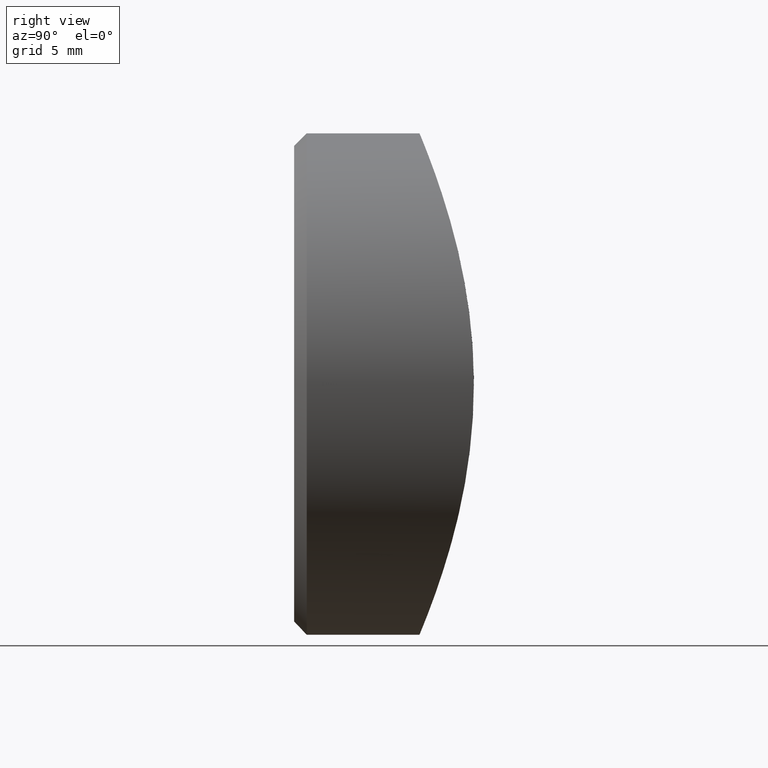
[diagram: clean part render]
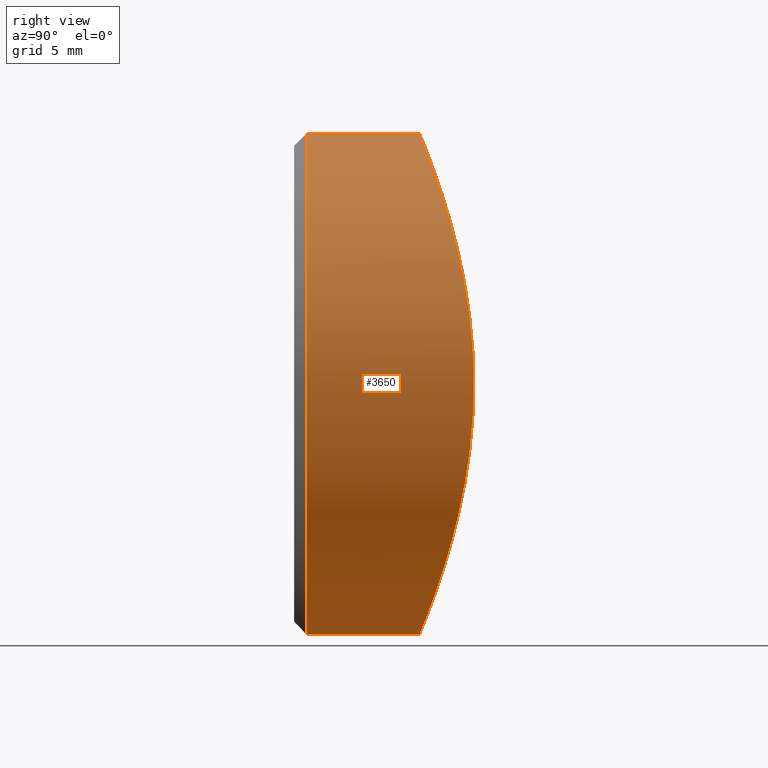
[diagram: same view with one face highlighted and labeled with its STEP entity id]
A machine part, right view. The second image highlights one B-rep face of the part: STEP entity #3650.
In plain terms, the highlighted cylindrical surface (bore or boss wall) has radius 10 mm, axis along (-0, -1, -0).
Its self-contained STEP definition (entity closure, byte-faithful):
#30 = CARTESIAN_POINT ( 'NONE',  ( -4.146300928546652109, 5.356622732125043029, 9.105812260108409717 ) ) ;
#307 = CARTESIAN_POINT ( 'NONE',  ( 0.6685898409940205234, 4.999999999999999112, -9.999999999999998224 ) ) ;
#319 = CYLINDRICAL_SURFACE ( 'NONE', #10499, 10.00000000000000000 ) ;
#478 = CARTESIAN_POINT ( 'NONE',  ( 4.460007492892792413, 5.407523304475200021, -8.974233905887116336 ) ) ;
#809 = CARTESIAN_POINT ( 'NONE',  ( -5.021732724417073079, 5.526048433272830351, 8.653857858785292123 ) ) ;
#851 = CARTESIAN_POINT ( 'NONE',  ( -9.866508024907622243, 7.107322681650651397, 1.661423778299080167 ) ) ;
#889 = CARTESIAN_POINT ( 'NONE',  ( -9.101057228647439601, 6.780113460454338714, 4.156614077757695647 ) ) ;
#930 = CARTESIAN_POINT ( 'NONE',  ( 0.3416281980981458744, 5.000171609606264056, 9.999585562541216888 ) ) ;
#973 = CARTESIAN_POINT ( 'NONE',  ( 0.6704349661022818152, 5.007071276361815926, 9.982955919743956130 ) ) ;
#1432 = CARTESIAN_POINT ( 'NONE',  ( 8.669091047136701533, 6.606278779777397858, -5.027249936795466390 ) ) ;
#1481 = CARTESIAN_POINT ( 'NONE',  ( 7.928773851458211119, 6.337634553492463851, -6.102380985635017296 ) ) ;
#1806 = CARTESIAN_POINT ( 'NONE',  ( -9.999715922551049019, 7.167548326830911698, 0.3382213582648907479 ) ) ;
#1835 = CIRCLE ( 'NONE', #11656, 10.00000000000000000 ) ;
#1845 = CARTESIAN_POINT ( 'NONE',  ( -6.604858916594664286, 5.919291658819459734, -7.515395329697081905 ) ) ;
#1897 = CARTESIAN_POINT ( 'NONE',  ( 7.949063932709880653, 6.342498770988322931, 6.101778635813145613 ) ) ;
#1945 = CARTESIAN_POINT ( 'NONE',  ( -4.445301050608903459, 5.410830137681569951, 8.963612774155105711 ) ) ;
#1989 = CARTESIAN_POINT ( 'NONE',  ( -1.638667573074397588, 5.053464111015505189, 9.870362379758919502 ) ) ;
#2017 = CARTESIAN_POINT ( 'NONE',  ( 0.000000000000000000, 0.5000000000000022204, 0.000000000000000000 ) ) ;
#2235 = CARTESIAN_POINT ( 'NONE',  ( 1.324602746686508237, 5.027693995643763181, -9.933634919405131214 ) ) ;
#2449 = CARTESIAN_POINT ( 'NONE',  ( 9.738179770275294800, 7.050329620124846208, -2.297105005416271606 ) ) ;
#2485 = B_SPLINE_CURVE_WITH_KNOTS ( 'NONE', 3,
 ( #11103, #307, #2235, #7215, #8196, #9181, #3315, #478, #5399, #12263, #6385, #7392, #3448, #10282, #4434, #1481, #11269, #1432, #8369, #2487, #9353, #3495, #2449, #8327, #9312, #3985, #10788, #5859, #6848, #4795, #12704, #7886, #11679, #1897, #6889, #5949, #11640, #11764, #5906, #12747, #4915, #6804, #3853, #8810, #8854, #973, #930, #7843, #12621, #9720, #1989, #10662, #2992, #30, #1945, #809, #9845, #10835, #4966, #5817, #10700, #11806, #4834, #12664, #8679, #2946, #889, #7723, #4874, #851, #5782, #6758, #1806, #11724, #2819, #8720, #9802, #3941, #9680, #3813, #2906, #7804, #8763, #7765, #1845, #2859, #9765, #3895, #8013, #8061, #8835, #11924, #4931, #2878, #10675, #4891 ),
 .UNSPECIFIED., .T., .F.,
 ( 4, 2, 2, 2, 2, 2, 2, 2, 2, 2, 2, 2, 2, 2, 2, 2, 2, 2, 2, 2, 2, 2, 2, 2, 2, 2, 2, 2, 2, 2, 2, 2, 2, 2, 2, 2, 2, 2, 2, 2, 2, 2, 2, 2, 2, 2, 2, 4 ),
 ( 0.000000000000000000, 0.001975776398232683643, 0.002963664597349025247, 0.003951552796465367286, 0.005927329194698052230, 0.006915217393814395569, 0.007903105592930736306, 0.008890993792047078778, 0.009878881991163421250, 0.01185465838939610619, 0.01284254658851244867, 0.01383043478762879114, 0.01580621118586147608, 0.01679409938497781682, 0.01778198758409416103, 0.01975776398232684597, 0.02173354038055952744, 0.02370931677879220892, 0.02568509317702489386, 0.02667298137614123460, 0.02766086957525757534, 0.02963664597349026375, 0.03062453417260660796, 0.03161242237172295216, 0.03260031057083929290, 0.03358819876995563364, 0.03556397516818832205, 0.03655186336730466279, 0.03753975156642100353, 0.03852763976553734426, 0.03951552796465369194, 0.04149130436288638035, 0.04247919256200272109, 0.04346708076111906183, 0.04544285715935175024, 0.04643074535846809098, 0.04741863355758442478, 0.04939440995581710625, 0.05137018635404979466, 0.05235807455316613540, 0.05334596275228247614, 0.05532173915051516455, 0.05630962734963150529, 0.05729751554874784603, 0.05927329194698052750, 0.06124906834521321591, 0.06223695654432955665, 0.06322484474344589045 ),
 .UNSPECIFIED. ) ;
#2487 = CARTESIAN_POINT ( 'NONE',  ( 9.351536007299278808, 6.883665212429011859, -3.557295207500231538 ) ) ;
#2819 = CARTESIAN_POINT ( 'NONE',  ( -9.936535572740650579, 7.138454496983015041, -1.307021620625269387 ) ) ;
#2859 = CARTESIAN_POINT ( 'NONE',  ( -6.103659208227282917, 5.782601436810779205, -7.927841606614947523 ) ) ;
#2878 = CARTESIAN_POINT ( 'NONE',  ( -0.6697883250221918772, 5.007030117249470891, -9.983056024903458336 ) ) ;
#2906 = CARTESIAN_POINT ( 'NONE',  ( -8.487067353210800746, 6.539622052336384606, -5.298577295798096110 ) ) ;
#2946 = CARTESIAN_POINT ( 'NONE',  ( -8.959076759627668807, 6.722668367561567493, 4.454432655922551554 ) ) ;
#2971 = FACE_OUTER_BOUND ( 'NONE', #3767, .T. ) ;
#2992 = CARTESIAN_POINT ( 'NONE',  ( -3.237694655618298611, 5.210152754811434583, 9.484083853626065874 ) ) ;
#3315 = CARTESIAN_POINT ( 'NONE',  ( 3.553999639533505395, 5.260982059097840668, -9.352872383431424907 ) ) ;
#3448 = CARTESIAN_POINT ( 'NONE',  ( 6.846066557773900385, 5.989460163542624116, -7.296244496542177771 ) ) ;
#3495 = CARTESIAN_POINT ( 'NONE',  ( 9.656114240653415948, 7.014213659418908620, -2.620665417038268608 ) ) ;
#3650 = ADVANCED_FACE ( 'NONE', ( #2971, #11406 ), #319, .T. ) ;
#3767 = EDGE_LOOP ( 'NONE', ( #9930 ) ) ;
#3813 = CARTESIAN_POINT ( 'NONE',  ( -8.656156134312556816, 6.604020597301828666, -5.017812244309582503 ) ) ;
#3853 = CARTESIAN_POINT ( 'NONE',  ( 2.634216507723645240, 5.135182073160032168, 9.669720002957024718 ) ) ;
#3895 = CARTESIAN_POINT ( 'NONE',  ( -5.039323530608731616, 5.525185307454418826, -8.661585811921362676 ) ) ;
#3941 = CARTESIAN_POINT ( 'NONE',  ( -9.106328756718527373, 6.782261989542066161, -4.145029980940003078 ) ) ;
#3985 = CARTESIAN_POINT ( 'NONE',  ( 10.00040900617423389, 7.167863617949264743, 0.3176673030703833778 ) ) ;
#4434 = CARTESIAN_POINT ( 'NONE',  ( 7.518077824388079478, 6.199009217922143655, -6.601743277941936938 ) ) ;
#4795 = CARTESIAN_POINT ( 'NONE',  ( 9.676296640429495000, 7.022828101597138328, 2.607988876370294307 ) ) ;
#4834 = CARTESIAN_POINT ( 'NONE',  ( -7.940332307611762452, 6.339456224636409232, 6.113001297087814478 ) ) ;
#4874 = CARTESIAN_POINT ( 'NONE',  ( -9.670626599334241291, 7.020338975890162203, 2.629110017269268074 ) ) ;
#4891 = CARTESIAN_POINT ( 'NONE',  ( -4.878909776184769953E-16, 4.999999999999999112, -10.00000000000000355 ) ) ;
#4915 = CARTESIAN_POINT ( 'NONE',  ( 4.159958603322281512, 5.359041056497870770, 9.099485771936040024 ) ) ;
#4931 = CARTESIAN_POINT ( 'NONE',  ( -1.329861478533836960, 5.034381003017012191, -9.916727910183336547 ) ) ;
#4966 = CARTESIAN_POINT ( 'NONE',  ( -6.097679573642314388, 5.781043938773438917, 7.932417372172134051 ) ) ;
#5399 = CARTESIAN_POINT ( 'NONE',  ( 5.031661090695161320, 5.523454555442991243, -8.666392432778005528 ) ) ;
#5782 = CARTESIAN_POINT ( 'NONE',  ( -9.916540444555115741, 7.129871426217686547, 1.331604818896089615 ) ) ;
#5788 = ORIENTED_EDGE ( 'NONE', *, *, #8320, .T. ) ;
#5817 = CARTESIAN_POINT ( 'NONE',  ( -6.598292517430042636, 5.917429340927871984, 7.521135379952923472 ) ) ;
#5859 = CARTESIAN_POINT ( 'NONE',  ( 9.918862008367089089, 7.130918131546907013, 1.314167683738197256 ) ) ;
#5906 = CARTESIAN_POINT ( 'NONE',  ( 5.029403097718449622, 5.527686029851387239, 8.649387923918968824 ) ) ;
#5949 = CARTESIAN_POINT ( 'NONE',  ( 6.618478030302936688, 5.919710930713273811, 7.524176811231900963 ) ) ;
#6230 = VERTEX_POINT ( 'NONE', #6524 ) ;
#6385 = CARTESIAN_POINT ( 'NONE',  ( 6.106028567364387705, 5.783220993693515055, -7.926017292744991671 ) ) ;
#6508 = EDGE_LOOP ( 'NONE', ( #5788 ) ) ;
#6524 = CARTESIAN_POINT ( 'NONE',  ( 0.000000000000000000, 0.5000000000000022204, 10.00000000000000000 ) ) ;
#6758 = CARTESIAN_POINT ( 'NONE',  ( -9.983170139167352630, 7.159998845683541724, 0.6687748160942247333 ) ) ;
#6785 = DIRECTION ( 'NONE',  ( 0.000000000000000000, 0.000000000000000000, 1.000000000000000000 ) ) ;
#6804 = CARTESIAN_POINT ( 'NONE',  ( 3.259355489656124760, 5.213228414778145137, 9.476296184276559842 ) ) ;
#6848 = CARTESIAN_POINT ( 'NONE',  ( 9.869928076924297855, 7.108856472948017036, 1.640914507083162110 ) ) ;
#6889 = CARTESIAN_POINT ( 'NONE',  ( 7.531726708176738505, 6.199538687129569681, 6.609885091105570432 ) ) ;
#7215 = CARTESIAN_POINT ( 'NONE',  ( 2.290844124180091423, 5.106727280800718916, -9.739607383557522979 ) ) ;
#7392 = CARTESIAN_POINT ( 'NONE',  ( 6.607120542733641244, 5.919935339547103936, -7.513407557436887707 ) ) ;
#7723 = CARTESIAN_POINT ( 'NONE',  ( -9.478821339272855084, 6.936294503095769670, 3.252488139911148046 ) ) ;
#7765 = CARTESIAN_POINT ( 'NONE',  ( -6.847596195432909205, 5.989894486223689363, -7.294918703482428768 ) ) ;
#7804 = CARTESIAN_POINT ( 'NONE',  ( -7.945190572558493258, 6.341131997789868358, -6.106953515105708163 ) ) ;
#7843 = CARTESIAN_POINT ( 'NONE',  ( -0.3169189386437679667, 4.999834710761670742, 10.00039917376538767 ) ) ;
#7886 = CARTESIAN_POINT ( 'NONE',  ( 8.977619374924001860, 6.729025034055982069, 4.453876922456356802 ) ) ;
#8013 = CARTESIAN_POINT ( 'NONE',  ( -4.467342248640351343, 5.408740856447741052, -8.971076279630640471 ) ) ;
#8061 = CARTESIAN_POINT ( 'NONE',  ( -3.247035887882689043, 5.211301404825853467, -9.481250672998816853 ) ) ;
#8074 = EDGE_CURVE ( 'NONE', #6230, #6230, #1835, .T. ) ;
#8196 = CARTESIAN_POINT ( 'NONE',  ( 2.609940751551603988, 5.139333498529842892, -9.659061652703451628 ) ) ;
#8320 = EDGE_CURVE ( 'NONE', #9006, #9006, #2485, .T. ) ;
#8327 = CARTESIAN_POINT ( 'NONE',  ( 9.933518279796031081, 7.137094259633087745, -1.326861394942243866 ) ) ;
#8369 = CARTESIAN_POINT ( 'NONE',  ( 8.975560322404280811, 6.728238713898575973, -4.456637348422945344 ) ) ;
#8679 = CARTESIAN_POINT ( 'NONE',  ( -8.648778744051140777, 6.601188794689787365, 5.030472433827578804 ) ) ;
#8720 = CARTESIAN_POINT ( 'NONE',  ( -9.675649913809747815, 7.022535767397092954, -2.612440133384051233 ) ) ;
#8763 = CARTESIAN_POINT ( 'NONE',  ( -7.535755018854213283, 6.200813945683178119, -6.605607199971379018 ) ) ;
#8810 = CARTESIAN_POINT ( 'NONE',  ( 1.656114244280814773, 5.054631051235181083, 9.867518988893710485 ) ) ;
#8835 = CARTESIAN_POINT ( 'NONE',  ( -2.620342116577891289, 5.133906165055870829, -9.672864136492147935 ) ) ;
#8854 = CARTESIAN_POINT ( 'NONE',  ( 1.327110505691012188, 5.034252694470970013, 9.917039358851411635 ) ) ;
#9006 = VERTEX_POINT ( 'NONE', #11483 ) ;
#9181 = CARTESIAN_POINT ( 'NONE',  ( 3.242105559943739390, 5.216495281517735449, -9.465622762159814130 ) ) ;
#9312 = CARTESIAN_POINT ( 'NONE',  ( 9.999158081187554004, 7.167294558976185392, -0.6732079116172177136 ) ) ;
#9353 = CARTESIAN_POINT ( 'NONE',  ( 9.462793877290028632, 6.930884104439970272, -3.250224837227786878 ) ) ;
#9606 = DIRECTION ( 'NONE',  ( -0.000000000000000000, -1.000000000000000000, -0.000000000000000000 ) ) ;
#9680 = CARTESIAN_POINT ( 'NONE',  ( -8.966223238888318292, 6.725525266376779499, -4.440081032048766474 ) ) ;
#9720 = CARTESIAN_POINT ( 'NONE',  ( -1.307093522203097713, 5.033133939378992672, 9.919758086071524872 ) ) ;
#9765 = CARTESIAN_POINT ( 'NONE',  ( -5.844219926075576943, 5.716186158000716944, -8.120933201394853640 ) ) ;
#9802 = CARTESIAN_POINT ( 'NONE',  ( -9.482639254338232959, 6.937936581853166196, -3.241225176596786550 ) ) ;
#9845 = CARTESIAN_POINT ( 'NONE',  ( -5.300121702959152969, 5.587155778296343911, 8.486082352045984933 ) ) ;
#9930 = ORIENTED_EDGE ( 'NONE', *, *, #8074, .T. ) ;
#10282 = CARTESIAN_POINT ( 'NONE',  ( 7.301545750407956170, 6.128995189516626141, -6.840412321014842867 ) ) ;
#10499 = AXIS2_PLACEMENT_3D ( 'NONE', #11524, #9606, #12512 ) ;
#10662 = CARTESIAN_POINT ( 'NONE',  ( -2.611123694691465325, 5.132763978599167665, 9.675700116386607874 ) ) ;
#10675 = CARTESIAN_POINT ( 'NONE',  ( -0.3342949204970085963, 4.999999999999998224, -10.00000000000000533 ) ) ;
#10700 = CARTESIAN_POINT ( 'NONE',  ( -6.840286897738382166, 5.987725712644352605, 7.301812769650004142 ) ) ;
#10788 = CARTESIAN_POINT ( 'NONE',  ( 9.984309522046300955, 7.160517213025600292, 0.6514780195720529798 ) ) ;
#10835 = CARTESIAN_POINT ( 'NONE',  ( -5.838095992970687043, 5.714651633497922489, 8.125362695212105635 ) ) ;
#10899 = DIRECTION ( 'NONE',  ( -0.000000000000000000, 1.000000000000000000, -0.000000000000000000 ) ) ;
#11103 = CARTESIAN_POINT ( 'NONE',  ( -4.878909776184769953E-16, 4.999999999999999112, -10.00000000000000355 ) ) ;
#11269 = CARTESIAN_POINT ( 'NONE',  ( 8.123568692970392746, 6.406481512302091730, -5.840738572152516461 ) ) ;
#11406 = FACE_OUTER_BOUND ( 'NONE', #6508, .T. ) ;
#11483 = CARTESIAN_POINT ( 'NONE',  ( 0.000000000000000000, 4.999999999999997335, -10.00000000000000000 ) ) ;
#11524 = CARTESIAN_POINT ( 'NONE',  ( 0.000000000000000000, 12.00000000000000000, 0.000000000000000000 ) ) ;
#11640 = CARTESIAN_POINT ( 'NONE',  ( 6.121268289338906321, 5.782065190671700883, 7.934310044590272781 ) ) ;
#11656 = AXIS2_PLACEMENT_3D ( 'NONE', #2017, #10899, #6785 ) ;
#11679 = CARTESIAN_POINT ( 'NONE',  ( 8.669618821834436773, 6.606543317366517343, 5.025637214410621390 ) ) ;
#11724 = CARTESIAN_POINT ( 'NONE',  ( -10.00055730179169799, 7.167931079324621813, -0.6509243651996483582 ) ) ;
#11764 = CARTESIAN_POINT ( 'NONE',  ( 5.311599831237379554, 5.589729247872171847, 8.478956750169036383 ) ) ;
#11806 = CARTESIAN_POINT ( 'NONE',  ( -7.530974929832652265, 6.199208801644682687, 6.611232477519823902 ) ) ;
#11924 = CARTESIAN_POINT ( 'NONE',  ( -1.655590812598578765, 5.054655365912949172, -9.867453694544305876 ) ) ;
#12263 = CARTESIAN_POINT ( 'NONE',  ( 5.842666543922465650, 5.715774209495148028, -8.122145063907742824 ) ) ;
#12512 = DIRECTION ( 'NONE',  ( 0.000000000000000000, 0.000000000000000000, -1.000000000000000000 ) ) ;
#12621 = CARTESIAN_POINT ( 'NONE',  ( -0.6466592739925834943, 5.006397248027003144, 9.984584405238214444 ) ) ;
#12664 = CARTESIAN_POINT ( 'NONE',  ( -8.480924178380243816, 6.537321118422614319, 5.308327475197856415 ) ) ;
#12704 = CARTESIAN_POINT ( 'NONE',  ( 9.484652889971716405, 6.938761231726620515, 3.236669405137203359 ) ) ;
#12747 = CARTESIAN_POINT ( 'NONE',  ( 4.453927118891896519, 5.412452821674738956, 8.959315833107710958 ) ) ;